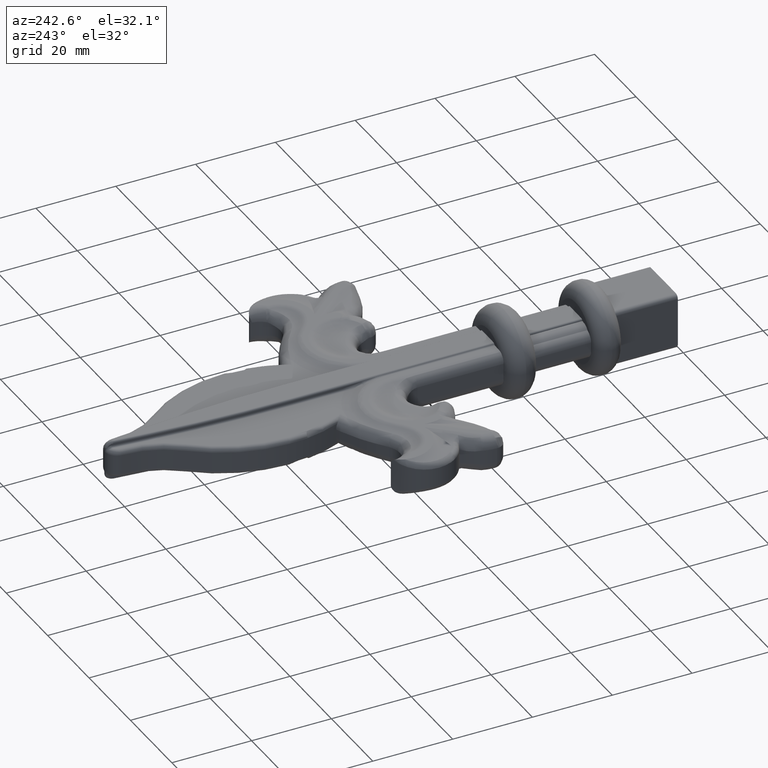
[diagram: clean part render]
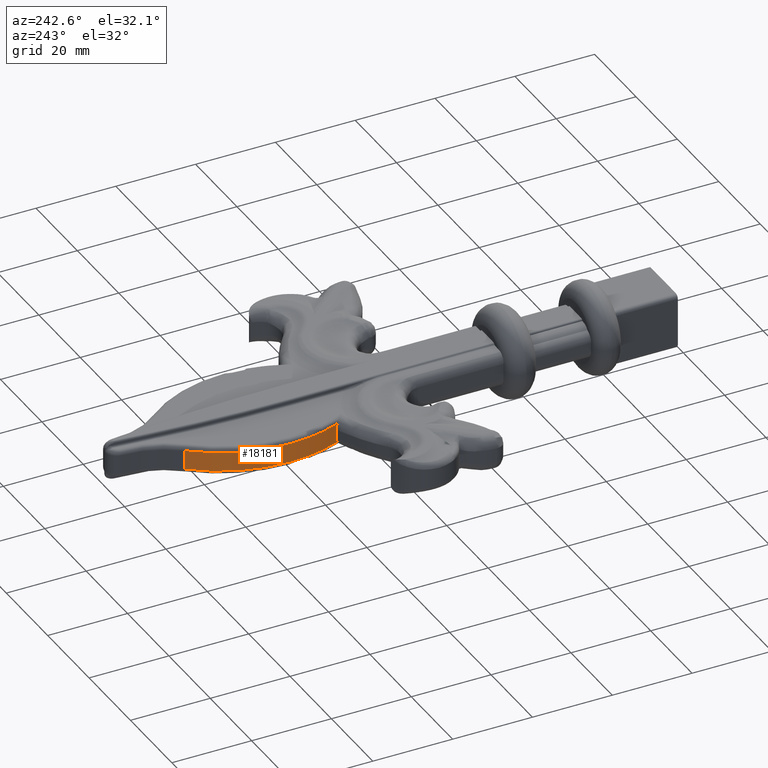
[diagram: same view with one face highlighted and labeled with its STEP entity id]
A machine part, auxiliary view. The second image highlights one B-rep face of the part: STEP entity #18181.
In plain terms, the highlighted cylindrical surface (partial cylindrical patch) has radius 34.1079 mm, axis along (0, -0, -1).
Its self-contained STEP definition (entity closure, byte-faithful):
#53 = CARTESIAN_POINT ( 'NONE',  ( -15.99999999999999289, 86.81754474824882095, 2.400000000000000355 ) ) ;
#257 = DIRECTION ( 'NONE',  ( -1.000000000000000000, 0.000000000000000000, 0.000000000000000000 ) ) ;
#623 = CARTESIAN_POINT ( 'NONE',  ( -13.43616429283413893, 73.84352046759394739, -1.990144293635716544 ) ) ;
#719 = CARTESIAN_POINT ( 'NONE',  ( -13.39861665716959571, 73.75213806986523934, -2.203028847594327377 ) ) ;
#923 = CARTESIAN_POINT ( 'NONE',  ( -13.48697359788018701, 73.96774858538786646, -1.541644635808098185 ) ) ;
#1099 = FACE_OUTER_BOUND ( 'NONE', #6515, .T. ) ;
#1385 = EDGE_CURVE ( 'NONE', #10318, #12992, #28205, .T. ) ;
#1394 = DIRECTION ( 'NONE',  ( 0.000000000000000000, -0.000000000000000000, -1.000000000000000000 ) ) ;
#1617 = DIRECTION ( 'NONE',  ( -0.000000000000000000, -0.000000000000000000, 1.000000000000000000 ) ) ;
#2062 = DIRECTION ( 'NONE',  ( 0.000000000000000000, 0.000000000000000000, 1.000000000000000000 ) ) ;
#2479 = CYLINDRICAL_SURFACE ( 'NONE', #8046, 34.10789067467207758 ) ;
#2671 = EDGE_CURVE ( 'NONE', #10814, #20369, #23600, .T. ) ;
#2715 = CIRCLE ( 'NONE', #14764, 34.10789067467207758 ) ;
#3513 = CARTESIAN_POINT ( 'NONE',  ( -13.34873873341774875, 73.63313453931341712, 2.400000000000000355 ) ) ;
#3574 = VERTEX_POINT ( 'NONE', #23880 ) ;
#3805 = EDGE_CURVE ( 'NONE', #12992, #10814, #5765, .T. ) ;
#3816 = CARTESIAN_POINT ( 'NONE',  ( 18.10789067467208469, 86.81754474824882095, -2.400000000000000355 ) ) ;
#3998 = CARTESIAN_POINT ( 'NONE',  ( -7.805214114948039850, 108.9954438019813097, -2.400000000000000355 ) ) ;
#4442 = VECTOR ( 'NONE', #25289, 1000.000000000000000 ) ;
#5161 = CARTESIAN_POINT ( 'NONE',  ( 18.10789067467208469, 86.81754474824882095, -2.400000000000000355 ) ) ;
#5413 = ORIENTED_EDGE ( 'NONE', *, *, #20250, .T. ) ;
#5571 = CARTESIAN_POINT ( 'NONE',  ( -13.39861665716959571, 73.75213806986523934, 2.203028847594327377 ) ) ;
#5765 = B_SPLINE_CURVE_WITH_KNOTS ( 'NONE', 3,
 ( #21024, #5571, #10013, #12265, #27875, #6305 ),
 .UNSPECIFIED., .F., .F.,
 ( 4, 2, 4 ),
 ( 0.002406653914090797763, 0.003105431680702065971, 0.003804209447313334179 ),
 .UNSPECIFIED. ) ;
#6305 = CARTESIAN_POINT ( 'NONE',  ( -13.49999999999999112, 74.00000000000001421, 1.069999999999999840 ) ) ;
#6515 = EDGE_LOOP ( 'NONE', ( #15135, #24629, #5413, #28631, #25930, #11192, #26560, #10843 ) ) ;
#7780 = DIRECTION ( 'NONE',  ( 1.000000000000000000, 0.000000000000000000, 0.000000000000000000 ) ) ;
#8046 = AXIS2_PLACEMENT_3D ( 'NONE', #14695, #1394, #7780 ) ;
#8178 = CIRCLE ( 'NONE', #13132, 34.10789067467207758 ) ;
#8269 = CIRCLE ( 'NONE', #25744, 34.10789067467207758 ) ;
#9296 = CARTESIAN_POINT ( 'NONE',  ( -7.805214114948039850, 108.9954438019813097, 2.400000000000000355 ) ) ;
#10013 = CARTESIAN_POINT ( 'NONE',  ( -13.43616429283413893, 73.84352046759394739, 1.990144293635716544 ) ) ;
#10318 = VERTEX_POINT ( 'NONE', #53 ) ;
#10730 = VERTEX_POINT ( 'NONE', #3998 ) ;
#10814 = VERTEX_POINT ( 'NONE', #20110 ) ;
#10843 = ORIENTED_EDGE ( 'NONE', *, *, #25845, .F. ) ;
#11184 = EDGE_CURVE ( 'NONE', #10730, #3574, #8269, .T. ) ;
#11192 = ORIENTED_EDGE ( 'NONE', *, *, #3805, .F. ) ;
#11401 = DIRECTION ( 'NONE',  ( 0.000000000000000000, 0.000000000000000000, 1.000000000000000000 ) ) ;
#11991 = CARTESIAN_POINT ( 'NONE',  ( -13.34873873341774875, 73.63313453931341712, -2.400000000000000355 ) ) ;
#12265 = CARTESIAN_POINT ( 'NONE',  ( -13.48697359788018701, 73.96774858538786646, 1.541644635808098185 ) ) ;
#12678 = DIRECTION ( 'NONE',  ( -1.000000000000000000, 0.000000000000000000, 0.000000000000000000 ) ) ;
#12992 = VERTEX_POINT ( 'NONE', #3513 ) ;
#13132 = AXIS2_PLACEMENT_3D ( 'NONE', #3816, #1617, #12678 ) ;
#13399 = CARTESIAN_POINT ( 'NONE',  ( 18.10789067467208469, 86.81754474824882095, 2.400000000000000355 ) ) ;
#14110 = CARTESIAN_POINT ( 'NONE',  ( -13.49999999999998579, 74.00000000000002842, -1.306286660594811133 ) ) ;
#14559 = B_SPLINE_CURVE_WITH_KNOTS ( 'NONE', 3,
 ( #11991, #719, #623, #923, #14110, #16445 ),
 .UNSPECIFIED., .F., .F.,
 ( 4, 2, 4 ),
 ( 0.002406653914090797763, 0.003105431680702065971, 0.003804209447313334179 ),
 .UNSPECIFIED. ) ;
#14695 = CARTESIAN_POINT ( 'NONE',  ( 18.10789067467208469, 86.81754474824882095, 3.500000000000000000 ) ) ;
#14764 = AXIS2_PLACEMENT_3D ( 'NONE', #26915, #11401, #257 ) ;
#15135 = ORIENTED_EDGE ( 'NONE', *, *, #28546, .T. ) ;
#15209 = VERTEX_POINT ( 'NONE', #9296 ) ;
#15474 = DIRECTION ( 'NONE',  ( 0.000000000000000000, -0.000000000000000000, -1.000000000000000000 ) ) ;
#15634 = DIRECTION ( 'NONE',  ( -1.000000000000000000, 0.000000000000000000, 0.000000000000000000 ) ) ;
#16139 = DIRECTION ( 'NONE',  ( -0.000000000000000000, -0.000000000000000000, 1.000000000000000000 ) ) ;
#16445 = CARTESIAN_POINT ( 'NONE',  ( -13.49999999999999112, 74.00000000000001421, -1.069999999999999840 ) ) ;
#16577 = VECTOR ( 'NONE', #15474, 1000.000000000000000 ) ;
#18181 = ADVANCED_FACE ( 'NONE', ( #1099 ), #2479, .T. ) ;
#18835 = CARTESIAN_POINT ( 'NONE',  ( -13.49999999999999112, 74.00000000000001421, 3.500000000000000000 ) ) ;
#19004 = AXIS2_PLACEMENT_3D ( 'NONE', #13399, #2062, #15634 ) ;
#19938 = CARTESIAN_POINT ( 'NONE',  ( -13.49999999999999112, 74.00000000000001421, -1.069999999999999840 ) ) ;
#20110 = CARTESIAN_POINT ( 'NONE',  ( -13.49999999999999112, 74.00000000000001421, 1.069999999999999840 ) ) ;
#20250 = EDGE_CURVE ( 'NONE', #3574, #27438, #8178, .T. ) ;
#20369 = VERTEX_POINT ( 'NONE', #19938 ) ;
#21024 = CARTESIAN_POINT ( 'NONE',  ( -13.34873873341774875, 73.63313453931341712, 2.400000000000000355 ) ) ;
#22479 = LINE ( 'NONE', #28841, #16577 ) ;
#23341 = CARTESIAN_POINT ( 'NONE',  ( -13.34873873341774875, 73.63313453931341712, -2.400000000000000355 ) ) ;
#23600 = LINE ( 'NONE', #18835, #4442 ) ;
#23880 = CARTESIAN_POINT ( 'NONE',  ( -15.99999999999999289, 86.81754474824882095, -2.400000000000000355 ) ) ;
#24629 = ORIENTED_EDGE ( 'NONE', *, *, #11184, .T. ) ;
#25289 = DIRECTION ( 'NONE',  ( 0.000000000000000000, -0.000000000000000000, -1.000000000000000000 ) ) ;
#25744 = AXIS2_PLACEMENT_3D ( 'NONE', #5161, #16139, #27770 ) ;
#25845 = EDGE_CURVE ( 'NONE', #15209, #10318, #2715, .T. ) ;
#25930 = ORIENTED_EDGE ( 'NONE', *, *, #2671, .F. ) ;
#26560 = ORIENTED_EDGE ( 'NONE', *, *, #1385, .F. ) ;
#26915 = CARTESIAN_POINT ( 'NONE',  ( 18.10789067467208469, 86.81754474824882095, 2.400000000000000355 ) ) ;
#26999 = EDGE_CURVE ( 'NONE', #27438, #20369, #14559, .T. ) ;
#27438 = VERTEX_POINT ( 'NONE', #23341 ) ;
#27770 = DIRECTION ( 'NONE',  ( -1.000000000000000000, 0.000000000000000000, 0.000000000000000000 ) ) ;
#27875 = CARTESIAN_POINT ( 'NONE',  ( -13.49999999999998579, 74.00000000000002842, 1.306286660594811133 ) ) ;
#28205 = CIRCLE ( 'NONE', #19004, 34.10789067467207758 ) ;
#28546 = EDGE_CURVE ( 'NONE', #15209, #10730, #22479, .T. ) ;
#28631 = ORIENTED_EDGE ( 'NONE', *, *, #26999, .T. ) ;
#28841 = CARTESIAN_POINT ( 'NONE',  ( -7.805214114948039850, 108.9954438019813097, 3.500000000000000000 ) ) ;